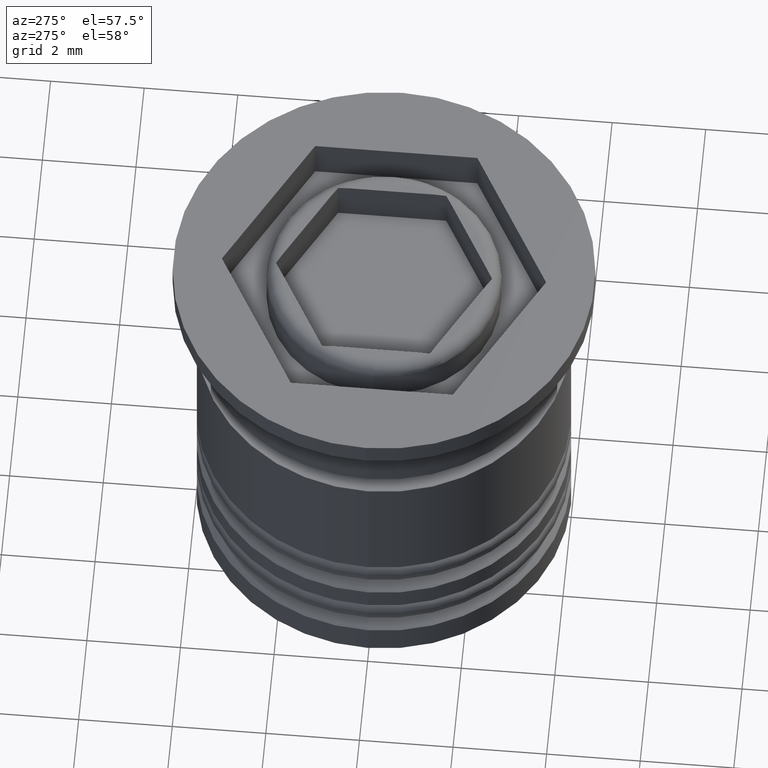
[diagram: clean part render]
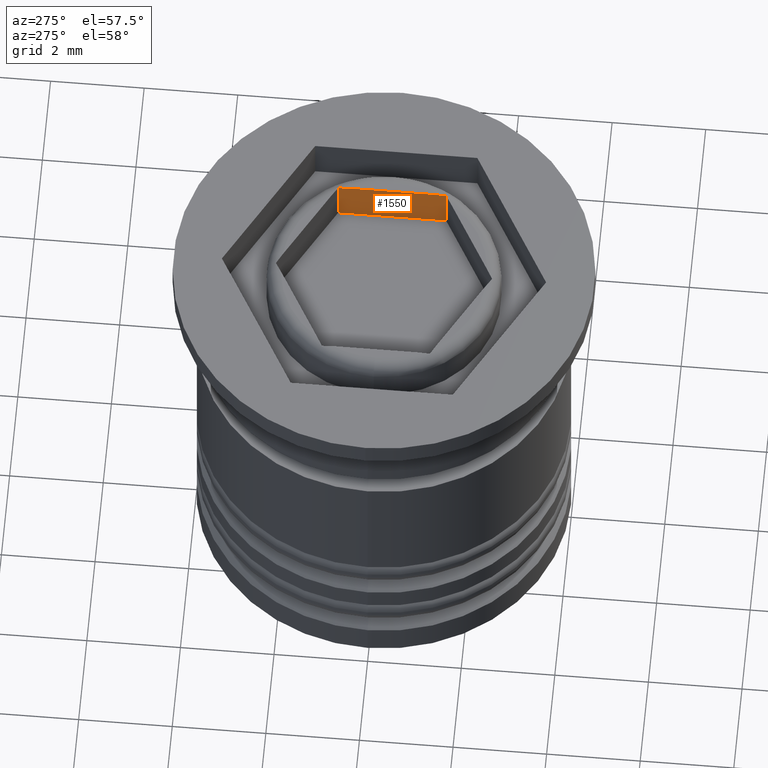
[diagram: same view with one face highlighted and labeled with its STEP entity id]
A machine part, auxiliary view. The second image highlights one B-rep face of the part: STEP entity #1550.
In plain terms, the highlighted planar face has unit normal (1, -0, 0).
Its self-contained STEP definition (entity closure, byte-faithful):
#65 = DIRECTION ( 'NONE',  ( 1.000000000000000000, -3.755786496842897578E-16, 0.000000000000000000 ) ) ;
#104 = CARTESIAN_POINT ( 'NONE',  ( 2.000000000000000888, 1.154700538379251684, -7.110100926607787919 ) ) ;
#105 = AXIS2_PLACEMENT_3D ( 'NONE', #1469, #65, #1738 ) ;
#121 = CARTESIAN_POINT ( 'NONE',  ( 2.000000000000000888, 0.9165151389911680990, 0.000000000000000000 ) ) ;
#161 = VECTOR ( 'NONE', #254, 1000.000000000000000 ) ;
#167 = VERTEX_POINT ( 'NONE', #1556 ) ;
#200 = VERTEX_POINT ( 'NONE', #2017 ) ;
#216 = FACE_OUTER_BOUND ( 'NONE', #1136, .T. ) ;
#248 = CARTESIAN_POINT ( 'NONE',  ( 2.000000000000000000, -1.154700538379252128, -1.000000000000000000 ) ) ;
#254 = DIRECTION ( 'NONE',  ( 3.755786496842897578E-16, 1.000000000000000000, 0.000000000000000000 ) ) ;
#326 = VECTOR ( 'NONE', #2016, 1000.000000000000000 ) ;
#421 = CARTESIAN_POINT ( 'NONE',  ( 2.000000000000000888, 1.076044055068428928, -0.005256474890640319003 ) ) ;
#456 = DIRECTION ( 'NONE',  ( -0.000000000000000000, -0.000000000000000000, 1.000000000000000000 ) ) ;
#471 = VERTEX_POINT ( 'NONE', #877 ) ;
#514 = ORIENTED_EDGE ( 'NONE', *, *, #663, .F. ) ;
#563 = DIRECTION ( 'NONE',  ( -3.755786496842897578E-16, -1.000000000000000000, 0.000000000000000000 ) ) ;
#572 = VERTEX_POINT ( 'NONE', #1131 ) ;
#663 = EDGE_CURVE ( 'NONE', #167, #471, #1368, .T. ) ;
#712 = EDGE_CURVE ( 'NONE', #167, #1438, #1185, .T. ) ;
#851 = CARTESIAN_POINT ( 'NONE',  ( 2.000000000000000000, -1.154700538379252128, -0.02065898188042571137 ) ) ;
#877 = CARTESIAN_POINT ( 'NONE',  ( 2.000000000000000888, 1.154700538379251684, -0.02065898188042657874 ) ) ;
#896 = CARTESIAN_POINT ( 'NONE',  ( 2.000000000000000888, 0.9965075568875386702, -5.781863551040906149E-17 ) ) ;
#903 = B_SPLINE_CURVE_WITH_KNOTS ( 'NONE', 3,
 ( #851, #1473, #1167, #1958 ),
 .UNSPECIFIED., .F., .F.,
 ( 4, 4 ),
 ( 0.000000000000000000, 0.0002390796478456419115 ),
 .UNSPECIFIED. ) ;
#939 = ORIENTED_EDGE ( 'NONE', *, *, #1957, .T. ) ;
#941 = VECTOR ( 'NONE', #456, 1000.000000000000000 ) ;
#1007 = ORIENTED_EDGE ( 'NONE', *, *, #1095, .T. ) ;
#1030 = B_SPLINE_CURVE_WITH_KNOTS ( 'NONE', 3,
 ( #121, #896, #421, #1999 ),
 .UNSPECIFIED., .F., .F.,
 ( 4, 4 ),
 ( 1.088212275557260522E-19, 0.0002390796478456430499 ),
 .UNSPECIFIED. ) ;
#1095 = EDGE_CURVE ( 'NONE', #1438, #572, #2025, .T. ) ;
#1099 = PLANE ( 'NONE',  #105 ) ;
#1107 = CARTESIAN_POINT ( 'NONE',  ( 2.000000000000000000, -1.154700538379252128, -7.110100926607787919 ) ) ;
#1131 = CARTESIAN_POINT ( 'NONE',  ( 2.000000000000000000, -1.154700538379252128, -0.02065898188042571137 ) ) ;
#1136 = EDGE_LOOP ( 'NONE', ( #1007, #1283, #1953, #939, #514, #1468 ) ) ;
#1167 = CARTESIAN_POINT ( 'NONE',  ( 2.000000000000000000, -0.9965075568875400025, 3.123516711406614449E-17 ) ) ;
#1185 = LINE ( 'NONE', #248, #1411 ) ;
#1265 = EDGE_CURVE ( 'NONE', #572, #1444, #903, .T. ) ;
#1283 = ORIENTED_EDGE ( 'NONE', *, *, #1265, .T. ) ;
#1368 = LINE ( 'NONE', #104, #326 ) ;
#1411 = VECTOR ( 'NONE', #563, 1000.000000000000000 ) ;
#1438 = VERTEX_POINT ( 'NONE', #1564 ) ;
#1444 = VERTEX_POINT ( 'NONE', #1654 ) ;
#1468 = ORIENTED_EDGE ( 'NONE', *, *, #712, .T. ) ;
#1469 = CARTESIAN_POINT ( 'NONE',  ( 2.000000000000000000, -1.154700538379252128, -7.110100926607787919 ) ) ;
#1473 = CARTESIAN_POINT ( 'NONE',  ( 2.000000000000000000, -1.076044055068429595, -0.005256474890640241808 ) ) ;
#1550 = ADVANCED_FACE ( 'NONE', ( #216 ), #1099, .F. ) ;
#1556 = CARTESIAN_POINT ( 'NONE',  ( 2.000000000000000888, 1.154700538379251684, -1.000000000000000000 ) ) ;
#1564 = CARTESIAN_POINT ( 'NONE',  ( 2.000000000000000000, -1.154700538379251906, -1.000000000000000000 ) ) ;
#1654 = CARTESIAN_POINT ( 'NONE',  ( 2.000000000000000000, -0.9165151389911695423, 0.000000000000000000 ) ) ;
#1657 = LINE ( 'NONE', #1798, #161 ) ;
#1682 = EDGE_CURVE ( 'NONE', #1444, #200, #1657, .T. ) ;
#1738 = DIRECTION ( 'NONE',  ( 3.755786496842897578E-16, 1.000000000000000000, 0.000000000000000000 ) ) ;
#1798 = CARTESIAN_POINT ( 'NONE',  ( 2.000000000000000000, -1.154700538379252128, 0.000000000000000000 ) ) ;
#1953 = ORIENTED_EDGE ( 'NONE', *, *, #1682, .T. ) ;
#1957 = EDGE_CURVE ( 'NONE', #200, #471, #1030, .T. ) ;
#1958 = CARTESIAN_POINT ( 'NONE',  ( 2.000000000000000000, -0.9165151389911695423, 0.000000000000000000 ) ) ;
#1999 = CARTESIAN_POINT ( 'NONE',  ( 2.000000000000000888, 1.154700538379251684, -0.02065898188042657874 ) ) ;
#2016 = DIRECTION ( 'NONE',  ( -0.000000000000000000, -0.000000000000000000, 1.000000000000000000 ) ) ;
#2017 = CARTESIAN_POINT ( 'NONE',  ( 2.000000000000000888, 0.9165151389911680990, 0.000000000000000000 ) ) ;
#2025 = LINE ( 'NONE', #1107, #941 ) ;